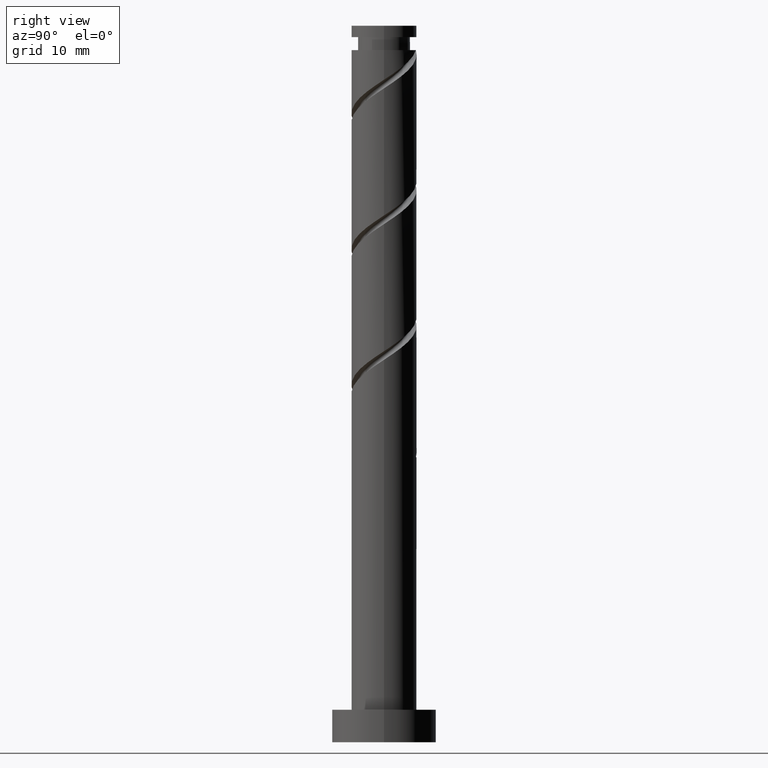
[diagram: clean part render]
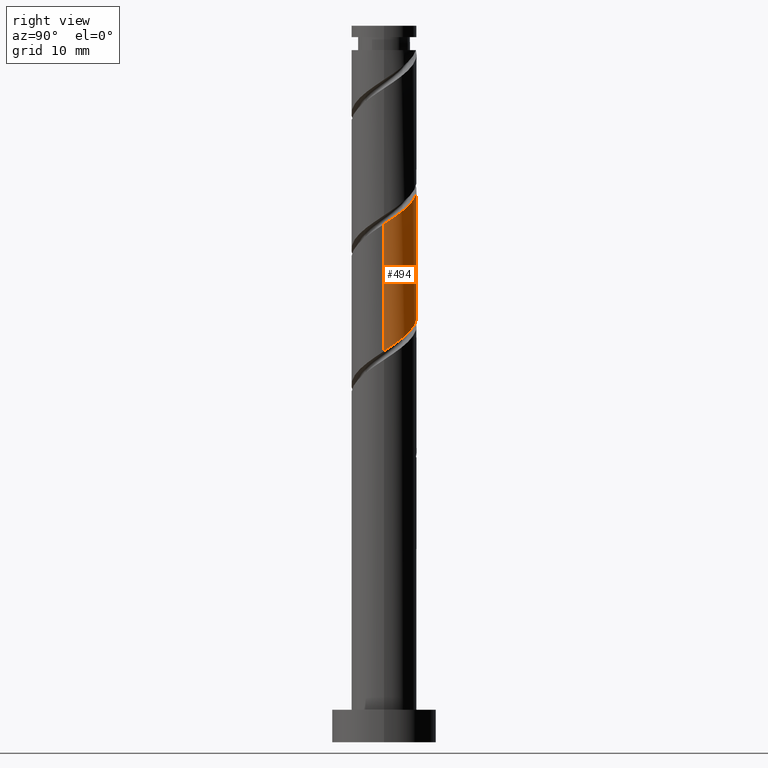
[diagram: same view with one face highlighted and labeled with its STEP entity id]
A machine part, right view. The second image highlights one B-rep face of the part: STEP entity #494.
In plain terms, the highlighted cylindrical surface (edge-blend (fillet) strip) has radius 5 mm, axis along (-0, -0, -1).
Its self-contained STEP definition (entity closure, byte-faithful):
#6 = CARTESIAN_POINT ( 'NONE',  ( -4.220345042522133383, 2.795680327841834956, 88.02814724525623546 ) ) ;
#26 = CARTESIAN_POINT ( 'NONE',  ( -5.000000000000006217, 0.2848686872321559704, 89.77800038124534865 ) ) ;
#63 = DIRECTION ( 'NONE',  ( -0.000000000000000000, -0.000000000000000000, -1.000000000000000000 ) ) ;
#68 = VERTEX_POINT ( 'NONE', #1436 ) ;
#81 = CARTESIAN_POINT ( 'NONE',  ( 1.771071194696848705, 4.742409471643923347, 64.06981391192289266 ) ) ;
#101 = CARTESIAN_POINT ( 'NONE',  ( 2.460472558129308762, 4.352708902590731732, 63.54898057858955696 ) ) ;
#106 = EDGE_CURVE ( 'NONE', #943, #68, #1501, .T. ) ;
#109 = CARTESIAN_POINT ( 'NONE',  ( 4.967644957101771119, 0.5678939867451756607, 60.42398057858955696 ) ) ;
#122 = CARTESIAN_POINT ( 'NONE',  ( 3.963008333537548999, 3.149873921561770374, 81.77814724525620704 ) ) ;
#126 = CARTESIAN_POINT ( 'NONE',  ( 2.795680327841835844, 4.220345042522130719, 82.81981391192287845 ) ) ;
#141 = ORIENTED_EDGE ( 'NONE', *, *, #106, .F. ) ;
#175 = LINE ( 'NONE', #673, #1013 ) ;
#213 = CARTESIAN_POINT ( 'NONE',  ( -0.5678939867451767709, 4.967644957101771119, 65.63231391192289266 ) ) ;
#226 = CARTESIAN_POINT ( 'NONE',  ( -0.9949874371066195211, 4.900000000000007461, 85.42398057858954985 ) ) ;
#232 = DIRECTION ( 'NONE',  ( -1.000000000000000000, 0.000000000000000000, 0.000000000000000000 ) ) ;
#258 = EDGE_CURVE ( 'NONE', #1079, #943, #175, .T. ) ;
#276 = EDGE_CURVE ( 'NONE', #636, #68, #756, .T. ) ;
#317 = VECTOR ( 'NONE', #815, 1000.000000000000000 ) ;
#321 = CARTESIAN_POINT ( 'NONE',  ( 4.220345042522128942, 2.795680327841828738, 61.98648057858954985 ) ) ;
#333 = CARTESIAN_POINT ( 'NONE',  ( 5.000000000000000000, 6.123233995736766282E-16, 110.0000000000000000 ) ) ;
#373 = CARTESIAN_POINT ( 'NONE',  ( -5.000000000000006217, -2.039061978515983509E-15, 89.96751147045262087 ) ) ;
#378 = CYLINDRICAL_SURFACE ( 'NONE', #548, 5.000000000000000000 ) ;
#381 = CARTESIAN_POINT ( 'NONE',  ( -2.460472558129309206, 4.352708902590738838, 86.46564724525620704 ) ) ;
#387 = CARTESIAN_POINT ( 'NONE',  ( 4.352708902590738838, 2.460472558129308762, 81.25731391192287845 ) ) ;
#418 =( BOUNDED_CURVE ( )  B_SPLINE_CURVE ( 2, ( #1326, #1467, #838, #734, #387, #122, #632, #126, #743, #505, #863, #994, #226, #1457, #381, #1566, #1107, #6, #498, #600, #720, #26, #373 ),
 .UNSPECIFIED., .F., .T. ) 
 B_SPLINE_CURVE_WITH_KNOTS ( ( 3, 2, 2, 2, 2, 2, 2, 2, 2, 2, 2, 3 ),
 ( 0.4295322023138552492, 0.4375000000000000000, 0.4499999999999999556, 0.4625000000000000222, 0.4749999999999999778, 0.4875000000000000444, 0.5000000000000000000, 0.5124999999999999556, 0.5250000000000000222, 0.5374999999999999778, 0.5500000000000000444, 0.5545322023138553602 ),
 .UNSPECIFIED. ) 
 CURVE ( )  GEOMETRIC_REPRESENTATION_ITEM ( )  RATIONAL_B_SPLINE_CURVE ( ( 0.9039174447099376231, 0.9019565955404669211, 0.9090909090909153889, 0.8978984914501313419, 0.9090909090909153889, 0.8978984914501313419, 0.9090909090909153889, 0.8978984914501313419, 0.9090909090909153889, 0.8978984914501313419, 0.9090909090909153889, 0.8978984914501313419, 0.9090909090909153889, 0.8978984914501313419, 0.9090909090909153889, 0.8978984914501313419, 0.9090909090909153889, 0.8978984914501313419, 0.9090909090909153889, 0.8978984914501313419, 0.9090909090909153889, 0.9050328050005795877, 0.9039174447099375120 ) ) 
 REPRESENTATION_ITEM ( '' )  );
#444 = CARTESIAN_POINT ( 'NONE',  ( -4.742409471643924235, 1.771071194696848039, 69.27814724525622125 ) ) ;
#453 = CARTESIAN_POINT ( 'NONE',  ( 3.685109482041948326, 3.379344330689684650, 62.50731391192289266 ) ) ;
#467 = EDGE_LOOP ( 'NONE', ( #575, #1108, #141, #1556 ) ) ;
#491 = CARTESIAN_POINT ( 'NONE',  ( 4.999999999999999112, 7.406592774903698041E-15, 60.04711635339315734 ) ) ;
#494 = ADVANCED_FACE ( 'NONE', ( #1465 ), #378, .T. ) ;
#498 = CARTESIAN_POINT ( 'NONE',  ( -4.549022214184803126, 2.075185990424291305, 88.54898057858956406 ) ) ;
#505 = CARTESIAN_POINT ( 'NONE',  ( 1.354691653006749652, 4.877699385847473756, 83.86148057858954985 ) ) ;
#548 = AXIS2_PLACEMENT_3D ( 'NONE', #861, #961, #232 ) ;
#575 = ORIENTED_EDGE ( 'NONE', *, *, #1260, .F. ) ;
#600 = CARTESIAN_POINT ( 'NONE',  ( -4.877699385847473756, 1.354691653006748764, 89.06981391192289266 ) ) ;
#632 = CARTESIAN_POINT ( 'NONE',  ( 3.379344330689691756, 3.685109482041950990, 82.29898057858952143 ) ) ;
#636 = VERTEX_POINT ( 'NONE', #1430 ) ;
#665 = CARTESIAN_POINT ( 'NONE',  ( -4.999999999999999112, 5.997241113282347084E-15, 70.46378302005983585 ) ) ;
#673 = CARTESIAN_POINT ( 'NONE',  ( -5.000000000000000000, 0.000000000000000000, 110.0000000000000000 ) ) ;
#686 = CARTESIAN_POINT ( 'NONE',  ( 0.9949874371066211864, 4.899999999999998579, 64.59064724525623546 ) ) ;
#694 = CARTESIAN_POINT ( 'NONE',  ( -4.999999999999999112, 5.997241113282347084E-15, 70.46378302005983585 ) ) ;
#707 = CARTESIAN_POINT ( 'NONE',  ( 0.2189036795163923632, 5.057590528356075588, 65.11148057858956406 ) ) ;
#720 = CARTESIAN_POINT ( 'NONE',  ( -4.967644957101777337, 0.5678939867451785473, 89.59064724525620704 ) ) ;
#734 = CARTESIAN_POINT ( 'NONE',  ( 4.742409471643930452, 1.771071194696848483, 80.73648057858956406 ) ) ;
#743 = CARTESIAN_POINT ( 'NONE',  ( 2.075185990424292637, 4.549022214184803126, 83.34064724525619283 ) ) ;
#756 = LINE ( 'NONE', #333, #317 ) ;
#804 = CARTESIAN_POINT ( 'NONE',  ( -2.795680327841830515, 4.220345042522128942, 67.19481391192289266 ) ) ;
#815 = DIRECTION ( 'NONE',  ( -0.000000000000000000, -0.000000000000000000, -1.000000000000000000 ) ) ;
#819 = CARTESIAN_POINT ( 'NONE',  ( -1.354691653006745877, 4.877699385847466651, 66.15314724525623546 ) ) ;
#828 = CARTESIAN_POINT ( 'NONE',  ( -3.963008333537541894, 3.149873921561767265, 68.23648057858956406 ) ) ;
#838 = CARTESIAN_POINT ( 'NONE',  ( 4.900000000000007461, 0.9949874371066198542, 80.21564724525622125 ) ) ;
#861 = CARTESIAN_POINT ( 'NONE',  ( 0.000000000000000000, 0.000000000000000000, 110.0000000000000000 ) ) ;
#863 = CARTESIAN_POINT ( 'NONE',  ( 0.5678939867451796575, 4.967644957101777337, 84.38231391192286424 ) ) ;
#930 = CARTESIAN_POINT ( 'NONE',  ( 3.149873921561768153, 3.963008333537541894, 63.02814724525622125 ) ) ;
#939 = CARTESIAN_POINT ( 'NONE',  ( 4.549022214184796908, 2.075185990424286864, 61.46564724525621415 ) ) ;
#943 = VERTEX_POINT ( 'NONE', #665 ) ;
#961 = DIRECTION ( 'NONE',  ( -0.000000000000000000, -0.000000000000000000, -1.000000000000000000 ) ) ;
#994 = CARTESIAN_POINT ( 'NONE',  ( -0.2189036795163904758, 5.057590528356081805, 84.90314724525622125 ) ) ;
#1013 = VECTOR ( 'NONE', #63, 1000.000000000000000 ) ;
#1052 = CARTESIAN_POINT ( 'NONE',  ( -2.075185990424288196, 4.549022214184796908, 66.67398057858957827 ) ) ;
#1079 = VERTEX_POINT ( 'NONE', #1542 ) ;
#1107 = CARTESIAN_POINT ( 'NONE',  ( -3.685109482041952322, 3.379344330689691756, 87.50731391192289266 ) ) ;
#1108 = ORIENTED_EDGE ( 'NONE', *, *, #276, .T. ) ;
#1166 = CARTESIAN_POINT ( 'NONE',  ( -4.352708902590731732, 2.460472558129306986, 68.75731391192289266 ) ) ;
#1190 = CARTESIAN_POINT ( 'NONE',  ( 4.877699385847466651, 1.354691653006745211, 60.94481391192288555 ) ) ;
#1196 = CARTESIAN_POINT ( 'NONE',  ( -3.379344330689686426, 3.685109482041947437, 67.71564724525622125 ) ) ;
#1260 = EDGE_CURVE ( 'NONE', #636, #1079, #418, .T. ) ;
#1326 = CARTESIAN_POINT ( 'NONE',  ( 5.000000000000005329, 3.958179134766322159E-15, 79.55084480378594947 ) ) ;
#1429 = CARTESIAN_POINT ( 'NONE',  ( -4.999999999999998224, 0.5025189076296090462, 70.12947844465197988 ) ) ;
#1430 = CARTESIAN_POINT ( 'NONE',  ( 5.000000000000005329, 3.958179134766321370E-15, 79.55084480378594947 ) ) ;
#1436 = CARTESIAN_POINT ( 'NONE',  ( 4.999999999999999112, 7.406592774903698041E-15, 60.04711635339315734 ) ) ;
#1457 = CARTESIAN_POINT ( 'NONE',  ( -1.771071194696850037, 4.742409471643930452, 85.94481391192289266 ) ) ;
#1459 = CARTESIAN_POINT ( 'NONE',  ( 4.999999999999998224, 0.2848686872321674057, 60.23662744260042956 ) ) ;
#1465 = FACE_OUTER_BOUND ( 'NONE', #467, .T. ) ;
#1467 = CARTESIAN_POINT ( 'NONE',  ( 5.000000000000005329, 0.5025189076296078250, 79.88514937919379122 ) ) ;
#1501 =( BOUNDED_CURVE ( )  B_SPLINE_CURVE ( 2, ( #694, #1429, #1534, #444, #1166, #828, #1196, #804, #1052, #819, #213, #707, #686, #81, #101, #930, #453, #321, #939, #1190, #109, #1459, #491 ),
 .UNSPECIFIED., .F., .T. ) 
 B_SPLINE_CURVE_WITH_KNOTS ( ( 3, 2, 2, 2, 2, 2, 2, 2, 2, 2, 2, 3 ),
 ( 0.6795322023138552492, 0.6875000000000000000, 0.6999999999999999556, 0.7125000000000000222, 0.7249999999999999778, 0.7375000000000000444, 0.7500000000000000000, 0.7624999999999999556, 0.7750000000000000222, 0.7874999999999999778, 0.8000000000000000444, 0.8045322023138551382 ),
 .UNSPECIFIED. ) 
 CURVE ( )  GEOMETRIC_REPRESENTATION_ITEM ( )  RATIONAL_B_SPLINE_CURVE ( ( 0.9039174447099311838, 0.9019565955404607038, 0.9090909090909090606, 0.8978984914501251247, 0.9090909090909090606, 0.8978984914501251247, 0.9090909090909090606, 0.8978984914501251247, 0.9090909090909090606, 0.8978984914501251247, 0.9090909090909090606, 0.8978984914501251247, 0.9090909090909090606, 0.8978984914501251247, 0.9090909090909090606, 0.8978984914501251247, 0.9090909090909090606, 0.8978984914501251247, 0.9090909090909090606, 0.8978984914501251247, 0.9090909090909090606, 0.9050328050005734815, 0.9039174447099311838 ) ) 
 REPRESENTATION_ITEM ( '' )  );
#1534 = CARTESIAN_POINT ( 'NONE',  ( -4.899999999999998579, 0.9949874371066200762, 69.79898057858954985 ) ) ;
#1542 = CARTESIAN_POINT ( 'NONE',  ( -5.000000000000006217, -2.039061978515983509E-15, 89.96751147045262087 ) ) ;
#1556 = ORIENTED_EDGE ( 'NONE', *, *, #258, .F. ) ;
#1566 = CARTESIAN_POINT ( 'NONE',  ( -3.149873921561770818, 3.963008333537548999, 86.98648057858956406 ) ) ;